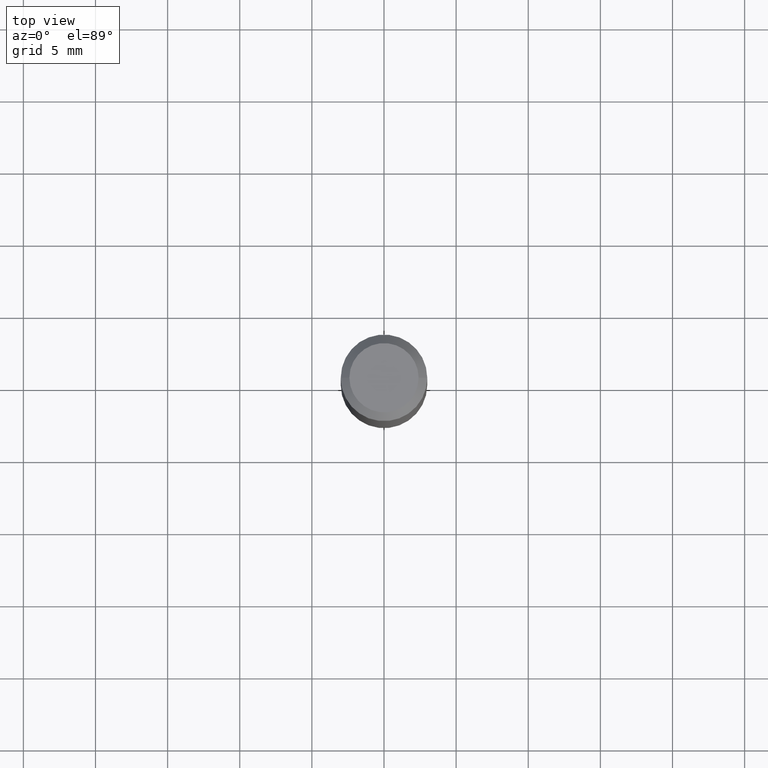
[diagram: clean part render]
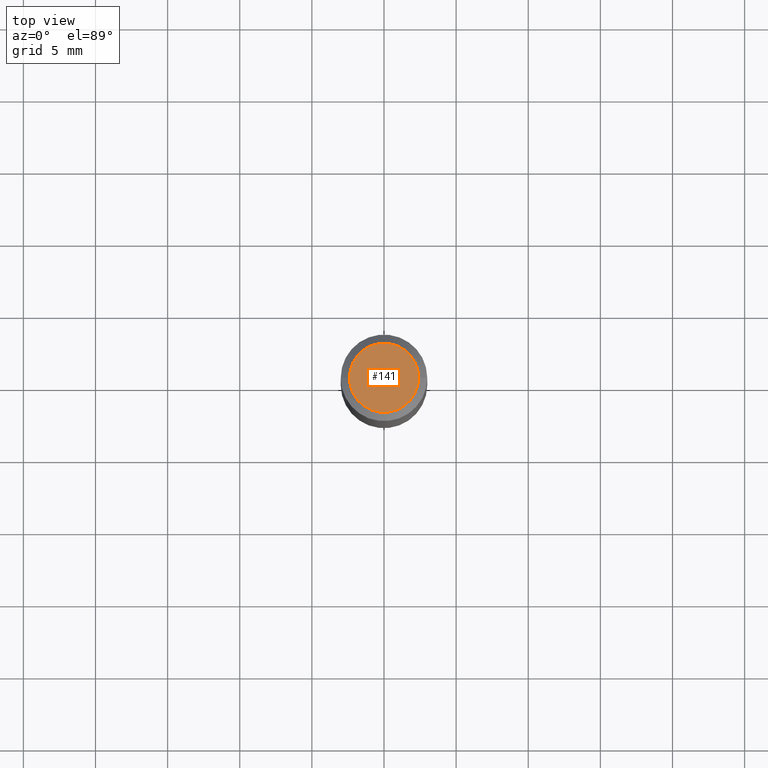
[diagram: same view with one face highlighted and labeled with its STEP entity id]
A machine part, top view. The second image highlights one B-rep face of the part: STEP entity #141.
In plain terms, the highlighted planar face has unit normal (0, -0, -1).
Its self-contained STEP definition (entity closure, byte-faithful):
#5 = CARTESIAN_POINT ( 'NONE',  ( 7.545787641473140628E-46, -1.077338491108201769E-31, -3.085620075131671975E-17 ) ) ;
#58 = ORIENTED_EDGE ( 'NONE', *, *, #434, .T. ) ;
#73 = AXIS2_PLACEMENT_3D ( 'NONE', #475, #277, #251 ) ;
#76 = DIRECTION ( 'NONE',  ( -1.000000000000000000, 6.982962677686265922E-15, -4.876176775795935793E-29 ) ) ;
#99 = CARTESIAN_POINT ( 'NONE',  ( -0.09447999999999998066, 7.009847083995354710E-16, -3.085620075132147757E-17 ) ) ;
#111 = CIRCLE ( 'NONE', #73, 0.09447999999999998066 ) ;
#116 = EDGE_CURVE ( 'NONE', #200, #461, #111, .T. ) ;
#141 = ADVANCED_FACE ( 'NONE', ( #426 ), #279, .F. ) ;
#173 = DIRECTION ( 'NONE',  ( -2.445468806185136597E-29, 3.491481338843145583E-15, 1.000000000000000000 ) ) ;
#194 = CARTESIAN_POINT ( 'NONE',  ( 3.772893820736570314E-46, -5.386692455541008845E-32, -1.542810037565835988E-17 ) ) ;
#200 = VERTEX_POINT ( 'NONE', #518 ) ;
#224 = DIRECTION ( 'NONE',  ( 1.000000000000000000, -6.982962677686267499E-15, 4.875432709231658792E-29 ) ) ;
#243 = DIRECTION ( 'NONE',  ( 2.438088387897960049E-29, -3.491481338843145188E-15, -1.000000000000000000 ) ) ;
#245 = ORIENTED_EDGE ( 'NONE', *, *, #116, .T. ) ;
#251 = DIRECTION ( 'NONE',  ( 1.000000000000000000, -6.982962677686267499E-15, 4.875432709231658792E-29 ) ) ;
#277 = DIRECTION ( 'NONE',  ( -2.445468806185136597E-29, 3.491481338843145583E-15, 1.000000000000000000 ) ) ;
#279 = PLANE ( 'NONE',  #425 ) ;
#362 = EDGE_LOOP ( 'NONE', ( #58, #245 ) ) ;
#383 = CIRCLE ( 'NONE', #471, 0.09447999999999998066 ) ;
#425 = AXIS2_PLACEMENT_3D ( 'NONE', #194, #243, #76 ) ;
#426 = FACE_OUTER_BOUND ( 'NONE', #362, .T. ) ;
#434 = EDGE_CURVE ( 'NONE', #461, #200, #383, .T. ) ;
#461 = VERTEX_POINT ( 'NONE', #99 ) ;
#471 = AXIS2_PLACEMENT_3D ( 'NONE', #5, #173, #224 ) ;
#475 = CARTESIAN_POINT ( 'NONE',  ( 7.545787641473140628E-46, -1.077338491108201769E-31, -3.085620075131671975E-17 ) ) ;
#518 = CARTESIAN_POINT ( 'NONE',  ( 0.09447999999999998066, -7.704367267948738690E-16, -3.085620075131172158E-17 ) ) ;